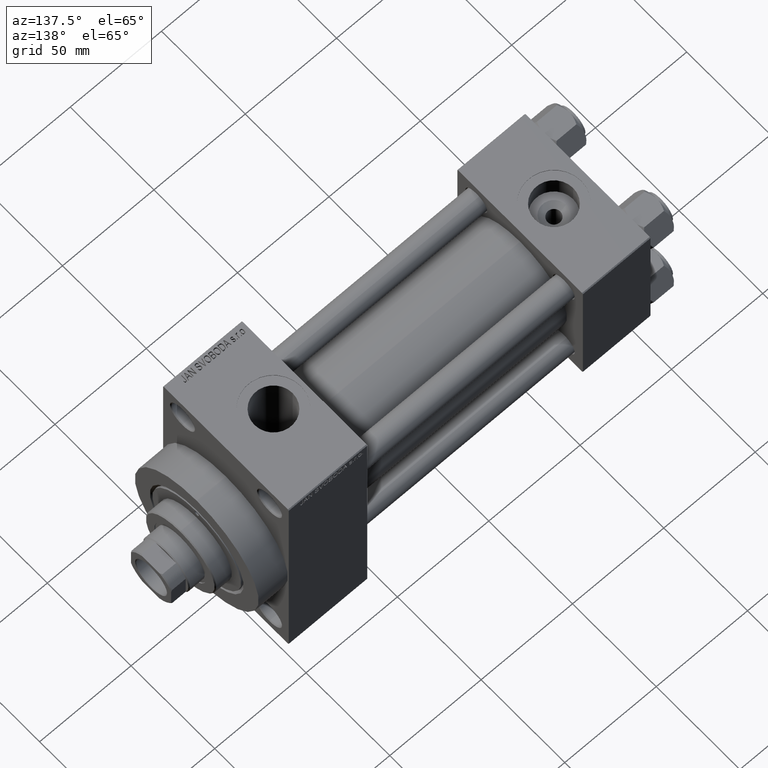
[diagram: clean part render]
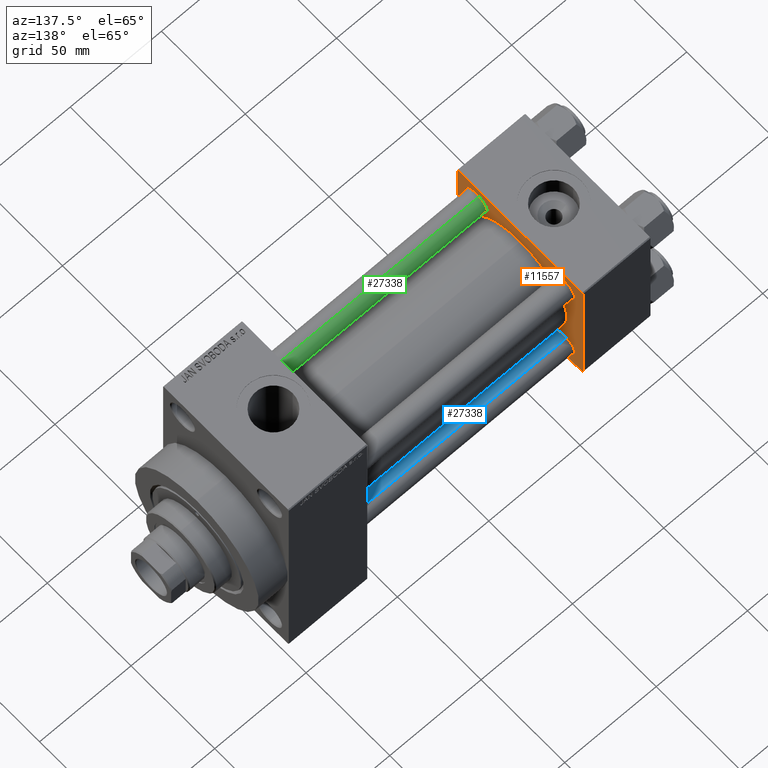
[diagram: same view with three faces highlighted in distinct colors, each labeled with its STEP entity id]
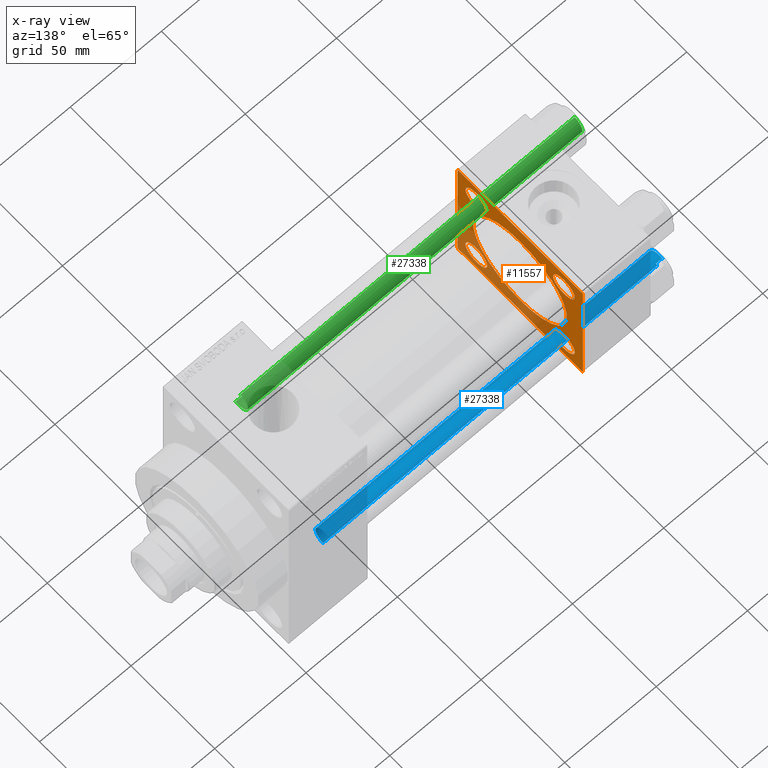
[diagram: x-ray of the same camera — body ghosted, the three highlighted faces saturated]
A machine part, auxiliary view with three faces highlighted in distinct colors.
The next image is the same camera in x-ray (body ghosted, the three faces saturated) — at least one of them is partly hidden behind the body in this view.
Their STEP definitions:

[orange] entity #11557 — the highlighted planar face has unit normal (-1, 0, 0).
#534 = VERTEX_POINT ( 'NONE', #22570 ) ;
#629 = CARTESIAN_POINT ( 'NONE',  ( 37.00000000000000000, 0.000000000000000000, 0.000000000000000000 ) ) ;
#679 = CARTESIAN_POINT ( 'NONE',  ( 37.00000000000000000, 37.49999999999999289, -36.99999999999998579 ) ) ;
#1746 = VERTEX_POINT ( 'NONE', #40072 ) ;
#1997 = CARTESIAN_POINT ( 'NONE',  ( 37.00000000000000000, -37.00000000000002132, -37.50000000000000711 ) ) ;
#2331 = VECTOR ( 'NONE', #6747, 1000.000000000000000 ) ;
#3017 = EDGE_CURVE ( 'NONE', #7062, #38577, #4089, .T. ) ;
#3171 = CIRCLE ( 'NONE', #22339, 6.500000000000008882 ) ;
#3374 = VERTEX_POINT ( 'NONE', #679 ) ;
#3701 = CARTESIAN_POINT ( 'NONE',  ( 37.00000000000000000, 36.99999999999999289, 37.50000000000000000 ) ) ;
#3756 = CARTESIAN_POINT ( 'NONE',  ( 37.00000000000000000, -26.14999999999999147, 26.15000000000000924 ) ) ;
#3987 = DIRECTION ( 'NONE',  ( -1.000000000000000000, 0.000000000000000000, -0.000000000000000000 ) ) ;
#4089 = LINE ( 'NONE', #22085, #2331 ) ;
#4221 = FACE_BOUND ( 'NONE', #11306, .T. ) ;
#4573 = CARTESIAN_POINT ( 'NONE',  ( 37.00000000000000711, 8.269258236473784371E-16, -28.00000000000000000 ) ) ;
#4767 = DIRECTION ( 'NONE',  ( -0.000000000000000000, 0.7071067811865474617, 0.7071067811865474617 ) ) ;
#4793 = AXIS2_PLACEMENT_3D ( 'NONE', #44710, #12098, #33691 ) ;
#4879 = CARTESIAN_POINT ( 'NONE',  ( 37.00000000000000000, 26.14999999999999858, 32.65000000000001279 ) ) ;
#5236 = EDGE_CURVE ( 'NONE', #8766, #1746, #21530, .T. ) ;
#6134 = VECTOR ( 'NONE', #38768, 1000.000000000000000 ) ;
#6212 = EDGE_CURVE ( 'NONE', #18485, #19445, #29604, .T. ) ;
#6566 = ORIENTED_EDGE ( 'NONE', *, *, #20150, .T. ) ;
#6745 = VERTEX_POINT ( 'NONE', #14561 ) ;
#6747 = DIRECTION ( 'NONE',  ( 0.000000000000000000, 9.251858538542971581E-17, -1.000000000000000000 ) ) ;
#6813 = ORIENTED_EDGE ( 'NONE', *, *, #35999, .F. ) ;
#7062 = VERTEX_POINT ( 'NONE', #12092 ) ;
#8138 = EDGE_CURVE ( 'NONE', #16079, #29522, #31610, .T. ) ;
#8149 = DIRECTION ( 'NONE',  ( 0.000000000000000000, 0.000000000000000000, 1.000000000000000000 ) ) ;
#8599 = CARTESIAN_POINT ( 'NONE',  ( 37.00000000000000000, 37.49999999999999289, -36.99999999999998579 ) ) ;
#8766 = VERTEX_POINT ( 'NONE', #14349 ) ;
#8905 = LINE ( 'NONE', #23550, #22683 ) ;
#8989 = ORIENTED_EDGE ( 'NONE', *, *, #10966, .T. ) ;
#9118 = ORIENTED_EDGE ( 'NONE', *, *, #37464, .T. ) ;
#9206 = EDGE_LOOP ( 'NONE', ( #42409, #9118 ) ) ;
#9424 = DIRECTION ( 'NONE',  ( 1.000000000000000000, -0.000000000000000000, 0.000000000000000000 ) ) ;
#9483 = LINE ( 'NONE', #42364, #6134 ) ;
#9949 = DIRECTION ( 'NONE',  ( 0.000000000000000000, 0.000000000000000000, 1.000000000000000000 ) ) ;
#9984 = CARTESIAN_POINT ( 'NONE',  ( 37.00000000000000000, 26.14999999999999858, -32.65000000000000568 ) ) ;
#10232 = LINE ( 'NONE', #43338, #10497 ) ;
#10497 = VECTOR ( 'NONE', #14069, 1000.000000000000000 ) ;
#10720 = VERTEX_POINT ( 'NONE', #46273 ) ;
#10802 = DIRECTION ( 'NONE',  ( -1.000000000000000000, 0.000000000000000000, -0.000000000000000000 ) ) ;
#10966 = EDGE_CURVE ( 'NONE', #29522, #16079, #24641, .T. ) ;
#11306 = EDGE_LOOP ( 'NONE', ( #14833, #6566 ) ) ;
#11464 = ORIENTED_EDGE ( 'NONE', *, *, #8138, .T. ) ;
#11556 = EDGE_CURVE ( 'NONE', #534, #17201, #3171, .T. ) ;
#11557 = ADVANCED_FACE ( 'NONE', ( #33495, #18605, #4221, #40694, #29890, #18370 ), #29427, .F. ) ;
#11724 = DIRECTION ( 'NONE',  ( -1.000000000000000000, 0.000000000000000000, -0.000000000000000000 ) ) ;
#11789 = CARTESIAN_POINT ( 'NONE',  ( 37.00000000000000000, -26.14999999999999147, 32.65000000000001990 ) ) ;
#12092 = CARTESIAN_POINT ( 'NONE',  ( 37.00000000000000000, -37.50000000000000711, 36.99999999999999289 ) ) ;
#12098 = DIRECTION ( 'NONE',  ( -1.000000000000000000, 0.000000000000000000, -0.000000000000000000 ) ) ;
#12377 = VERTEX_POINT ( 'NONE', #19681 ) ;
#12425 = DIRECTION ( 'NONE',  ( 0.000000000000000000, 0.000000000000000000, 1.000000000000000000 ) ) ;
#12485 = CARTESIAN_POINT ( 'NONE',  ( 37.00000000000000000, -37.00000000000000711, 37.49999999999999289 ) ) ;
#12658 = CARTESIAN_POINT ( 'NONE',  ( 37.00000000000000000, 26.14999999999999858, -26.15000000000000213 ) ) ;
#12721 = CIRCLE ( 'NONE', #18822, 28.00000000000000000 ) ;
#12869 = CARTESIAN_POINT ( 'NONE',  ( 37.00000000000000000, 37.49999999999999289, -37.50000000000000000 ) ) ;
#13169 = CARTESIAN_POINT ( 'NONE',  ( 37.00000000000000000, -37.50000000000000000, -37.00000000000003553 ) ) ;
#13307 = DIRECTION ( 'NONE',  ( 0.000000000000000000, 0.000000000000000000, 1.000000000000000000 ) ) ;
#14069 = DIRECTION ( 'NONE',  ( 0.000000000000000000, 0.000000000000000000, -1.000000000000000000 ) ) ;
#14113 = DIRECTION ( 'NONE',  ( 0.000000000000000000, 0.000000000000000000, 1.000000000000000000 ) ) ;
#14349 = CARTESIAN_POINT ( 'NONE',  ( 37.00000000000000000, -26.14999999999999147, -19.65000000000000924 ) ) ;
#14373 = ORIENTED_EDGE ( 'NONE', *, *, #46804, .T. ) ;
#14561 = CARTESIAN_POINT ( 'NONE',  ( 37.00000000000000000, 36.99999999999997868, -37.50000000000000000 ) ) ;
#14784 = EDGE_LOOP ( 'NONE', ( #8989, #11464 ) ) ;
#14833 = ORIENTED_EDGE ( 'NONE', *, *, #11556, .T. ) ;
#14936 = CIRCLE ( 'NONE', #16469, 28.00000000000000000 ) ;
#14963 = ORIENTED_EDGE ( 'NONE', *, *, #5236, .T. ) ;
#15275 = VECTOR ( 'NONE', #4767, 1000.000000000000114 ) ;
#16079 = VERTEX_POINT ( 'NONE', #46531 ) ;
#16176 = LINE ( 'NONE', #38031, #34172 ) ;
#16444 = DIRECTION ( 'NONE',  ( 0.000000000000000000, -1.000000000000000000, -9.251858538542972814E-17 ) ) ;
#16469 = AXIS2_PLACEMENT_3D ( 'NONE', #42305, #9424, #35571 ) ;
#17201 = VERTEX_POINT ( 'NONE', #11789 ) ;
#17226 = AXIS2_PLACEMENT_3D ( 'NONE', #42361, #42823, #9949 ) ;
#17399 = AXIS2_PLACEMENT_3D ( 'NONE', #27415, #24039, #14113 ) ;
#18138 = DIRECTION ( 'NONE',  ( -1.000000000000000000, 0.000000000000000000, -0.000000000000000000 ) ) ;
#18370 = FACE_OUTER_BOUND ( 'NONE', #25132, .T. ) ;
#18485 = VERTEX_POINT ( 'NONE', #34576 ) ;
#18605 = FACE_BOUND ( 'NONE', #14784, .T. ) ;
#18822 = AXIS2_PLACEMENT_3D ( 'NONE', #46557, #31239, #46089 ) ;
#18865 = AXIS2_PLACEMENT_3D ( 'NONE', #26992, #38514, #13307 ) ;
#19296 = DIRECTION ( 'NONE',  ( -0.000000000000000000, -0.7071067811865474617, -0.7071067811865474617 ) ) ;
#19445 = VERTEX_POINT ( 'NONE', #20653 ) ;
#19681 = CARTESIAN_POINT ( 'NONE',  ( 37.00000000000000711, -2.602085213965210642E-15, 28.00000000000000000 ) ) ;
#20150 = EDGE_CURVE ( 'NONE', #17201, #534, #40232, .T. ) ;
#20363 = EDGE_CURVE ( 'NONE', #12377, #30250, #14936, .T. ) ;
#20653 = CARTESIAN_POINT ( 'NONE',  ( 37.00000000000000000, 36.99999999999999289, 37.50000000000000000 ) ) ;
#20807 = DIRECTION ( 'NONE',  ( 0.000000000000000000, 0.000000000000000000, 1.000000000000000000 ) ) ;
#21258 = ORIENTED_EDGE ( 'NONE', *, *, #20363, .F. ) ;
#21530 = CIRCLE ( 'NONE', #43764, 6.500000000000002665 ) ;
#21547 = AXIS2_PLACEMENT_3D ( 'NONE', #629, #18138, #47398 ) ;
#21667 = ORIENTED_EDGE ( 'NONE', *, *, #6212, .T. ) ;
#22085 = CARTESIAN_POINT ( 'NONE',  ( 37.00000000000000000, -37.50000000000000711, 37.49999999999999289 ) ) ;
#22262 = EDGE_CURVE ( 'NONE', #19445, #27226, #8905, .T. ) ;
#22339 = AXIS2_PLACEMENT_3D ( 'NONE', #3756, #3987, #25820 ) ;
#22570 = CARTESIAN_POINT ( 'NONE',  ( 37.00000000000000000, -26.14999999999999147, 19.65000000000000213 ) ) ;
#22683 = VECTOR ( 'NONE', #33638, 1000.000000000000000 ) ;
#23421 = LINE ( 'NONE', #12869, #29904 ) ;
#23547 = ORIENTED_EDGE ( 'NONE', *, *, #35292, .T. ) ;
#23550 = CARTESIAN_POINT ( 'NONE',  ( 37.00000000000000000, 37.49999999999999289, 37.50000000000000000 ) ) ;
#24039 = DIRECTION ( 'NONE',  ( -1.000000000000000000, 0.000000000000000000, -0.000000000000000000 ) ) ;
#24641 = CIRCLE ( 'NONE', #38421, 6.500000000000002665 ) ;
#25132 = EDGE_LOOP ( 'NONE', ( #6813, #47438, #35530, #21667, #31562, #14373, #45595, #23547 ) ) ;
#25820 = DIRECTION ( 'NONE',  ( 0.000000000000000000, 0.000000000000000000, 1.000000000000000000 ) ) ;
#25833 = CIRCLE ( 'NONE', #17399, 6.500000000000002665 ) ;
#26079 = EDGE_CURVE ( 'NONE', #30250, #12377, #12721, .T. ) ;
#26992 = CARTESIAN_POINT ( 'NONE',  ( 37.00000000000000000, 26.14999999999999858, 26.15000000000000213 ) ) ;
#27101 = EDGE_CURVE ( 'NONE', #10720, #41215, #33436, .T. ) ;
#27226 = VERTEX_POINT ( 'NONE', #12485 ) ;
#27293 = DIRECTION ( 'NONE',  ( -1.000000000000000000, 0.000000000000000000, -0.000000000000000000 ) ) ;
#27415 = CARTESIAN_POINT ( 'NONE',  ( 37.00000000000000000, -26.14999999999999147, -26.15000000000000924 ) ) ;
#27587 = EDGE_CURVE ( 'NONE', #18485, #3374, #10232, .T. ) ;
#27690 = EDGE_LOOP ( 'NONE', ( #21258, #33918 ) ) ;
#29227 = EDGE_CURVE ( 'NONE', #1746, #8766, #25833, .T. ) ;
#29427 = PLANE ( 'NONE',  #21547 ) ;
#29522 = VERTEX_POINT ( 'NONE', #9984 ) ;
#29604 = LINE ( 'NONE', #3701, #42260 ) ;
#29890 = FACE_BOUND ( 'NONE', #27690, .T. ) ;
#29904 = VECTOR ( 'NONE', #16444, 1000.000000000000000 ) ;
#30250 = VERTEX_POINT ( 'NONE', #4573 ) ;
#31239 = DIRECTION ( 'NONE',  ( 1.000000000000000000, -0.000000000000000000, 0.000000000000000000 ) ) ;
#31562 = ORIENTED_EDGE ( 'NONE', *, *, #22262, .T. ) ;
#31610 = CIRCLE ( 'NONE', #4793, 6.500000000000002665 ) ;
#32641 = CARTESIAN_POINT ( 'NONE',  ( 37.00000000000000000, 26.14999999999999858, 26.15000000000000213 ) ) ;
#33436 = CIRCLE ( 'NONE', #18865, 6.500000000000002665 ) ;
#33495 = FACE_BOUND ( 'NONE', #37801, .T. ) ;
#33638 = DIRECTION ( 'NONE',  ( 0.000000000000000000, -1.000000000000000000, -9.251858538542971581E-17 ) ) ;
#33691 = DIRECTION ( 'NONE',  ( 0.000000000000000000, 0.000000000000000000, 1.000000000000000000 ) ) ;
#33918 = ORIENTED_EDGE ( 'NONE', *, *, #26079, .F. ) ;
#34172 = VECTOR ( 'NONE', #19296, 1000.000000000000114 ) ;
#34455 = VERTEX_POINT ( 'NONE', #1997 ) ;
#34576 = CARTESIAN_POINT ( 'NONE',  ( 37.00000000000000000, 37.49999999999999289, 37.00000000000000000 ) ) ;
#34785 = EDGE_CURVE ( 'NONE', #6745, #3374, #37635, .T. ) ;
#35214 = AXIS2_PLACEMENT_3D ( 'NONE', #32641, #10802, #8149 ) ;
#35292 = EDGE_CURVE ( 'NONE', #38577, #34455, #9483, .T. ) ;
#35530 = ORIENTED_EDGE ( 'NONE', *, *, #27587, .F. ) ;
#35571 = DIRECTION ( 'NONE',  ( 0.000000000000000000, 0.000000000000000000, 1.000000000000000000 ) ) ;
#35999 = EDGE_CURVE ( 'NONE', #6745, #34455, #23421, .T. ) ;
#37464 = EDGE_CURVE ( 'NONE', #41215, #10720, #47440, .T. ) ;
#37635 = LINE ( 'NONE', #8599, #15275 ) ;
#37801 = EDGE_LOOP ( 'NONE', ( #40409, #14963 ) ) ;
#38031 = CARTESIAN_POINT ( 'NONE',  ( 37.00000000000000000, -37.50000000000000711, 36.99999999999999289 ) ) ;
#38353 = CARTESIAN_POINT ( 'NONE',  ( 37.00000000000000000, -26.14999999999999147, -26.15000000000000924 ) ) ;
#38421 = AXIS2_PLACEMENT_3D ( 'NONE', #12658, #27293, #12425 ) ;
#38514 = DIRECTION ( 'NONE',  ( -1.000000000000000000, 0.000000000000000000, -0.000000000000000000 ) ) ;
#38577 = VERTEX_POINT ( 'NONE', #13169 ) ;
#38768 = DIRECTION ( 'NONE',  ( 0.000000000000000000, 0.7071067811865524577, -0.7071067811865426878 ) ) ;
#40072 = CARTESIAN_POINT ( 'NONE',  ( 37.00000000000000000, -26.14999999999999147, -32.65000000000001279 ) ) ;
#40232 = CIRCLE ( 'NONE', #17226, 6.500000000000008882 ) ;
#40409 = ORIENTED_EDGE ( 'NONE', *, *, #29227, .T. ) ;
#40694 = FACE_BOUND ( 'NONE', #9206, .T. ) ;
#41215 = VERTEX_POINT ( 'NONE', #4879 ) ;
#42260 = VECTOR ( 'NONE', #43759, 1000.000000000000114 ) ;
#42305 = CARTESIAN_POINT ( 'NONE',  ( 37.00000000000000711, -2.602085213965210642E-15, 0.000000000000000000 ) ) ;
#42361 = CARTESIAN_POINT ( 'NONE',  ( 37.00000000000000000, -26.14999999999999147, 26.15000000000000924 ) ) ;
#42364 = CARTESIAN_POINT ( 'NONE',  ( 37.00000000000000000, -37.00000000000002132, -37.50000000000000711 ) ) ;
#42409 = ORIENTED_EDGE ( 'NONE', *, *, #27101, .T. ) ;
#42823 = DIRECTION ( 'NONE',  ( -1.000000000000000000, 0.000000000000000000, -0.000000000000000000 ) ) ;
#43338 = CARTESIAN_POINT ( 'NONE',  ( 37.00000000000000000, 37.49999999999999289, 37.50000000000000000 ) ) ;
#43759 = DIRECTION ( 'NONE',  ( 0.000000000000000000, -0.7071067811865474617, 0.7071067811865474617 ) ) ;
#43764 = AXIS2_PLACEMENT_3D ( 'NONE', #38353, #11724, #20807 ) ;
#44710 = CARTESIAN_POINT ( 'NONE',  ( 37.00000000000000000, 26.14999999999999858, -26.15000000000000213 ) ) ;
#45595 = ORIENTED_EDGE ( 'NONE', *, *, #3017, .T. ) ;
#46089 = DIRECTION ( 'NONE',  ( 0.000000000000000000, 0.000000000000000000, 1.000000000000000000 ) ) ;
#46273 = CARTESIAN_POINT ( 'NONE',  ( 37.00000000000000000, 26.14999999999999858, 19.64999999999999858 ) ) ;
#46531 = CARTESIAN_POINT ( 'NONE',  ( 37.00000000000000000, 26.14999999999999858, -19.65000000000000213 ) ) ;
#46557 = CARTESIAN_POINT ( 'NONE',  ( 37.00000000000000711, -2.602085213965210642E-15, 0.000000000000000000 ) ) ;
#46804 = EDGE_CURVE ( 'NONE', #27226, #7062, #16176, .T. ) ;
#47398 = DIRECTION ( 'NONE',  ( -0.000000000000000000, 0.000000000000000000, 1.000000000000000000 ) ) ;
#47438 = ORIENTED_EDGE ( 'NONE', *, *, #34785, .T. ) ;
#47440 = CIRCLE ( 'NONE', #35214, 6.500000000000002665 ) ;

[blue] entity #27338 — the highlighted cylindrical surface (edge-blend (fillet) strip) has radius 6 mm, axis along (1, -0, 0).
#646 = LINE ( 'NONE', #10729, #9630 ) ;
#1634 = AXIS2_PLACEMENT_3D ( 'NONE', #16598, #45624, #12780 ) ;
#2382 = DIRECTION ( 'NONE',  ( 0.000000000000000000, 0.000000000000000000, -1.000000000000000000 ) ) ;
#2625 = DIRECTION ( 'NONE',  ( -1.000000000000000000, 0.000000000000000000, 0.000000000000000000 ) ) ;
#2935 = CARTESIAN_POINT ( 'NONE',  ( -6.000000000000000888, 0.000000000000000000, 184.0000000000000000 ) ) ;
#5574 = CIRCLE ( 'NONE', #1634, 6.000000000000000888 ) ;
#5833 = VERTEX_POINT ( 'NONE', #31603 ) ;
#6891 = EDGE_LOOP ( 'NONE', ( #17394, #22971, #41638, #25652 ) ) ;
#9630 = VECTOR ( 'NONE', #40013, 1000.000000000000000 ) ;
#9819 = FACE_OUTER_BOUND ( 'NONE', #6891, .T. ) ;
#10308 = EDGE_CURVE ( 'NONE', #34786, #46393, #5574, .T. ) ;
#10567 = VERTEX_POINT ( 'NONE', #40570 ) ;
#10729 = CARTESIAN_POINT ( 'NONE',  ( 6.000000000000000888, 7.347880794884120722E-16, 184.0000000000000000 ) ) ;
#12780 = DIRECTION ( 'NONE',  ( 1.000000000000000000, 0.000000000000000000, 0.000000000000000000 ) ) ;
#13420 = CARTESIAN_POINT ( 'NONE',  ( 0.000000000000000000, 0.000000000000000000, 184.0000000000000000 ) ) ;
#15096 = LINE ( 'NONE', #2935, #47146 ) ;
#16598 = CARTESIAN_POINT ( 'NONE',  ( 0.000000000000000000, 0.000000000000000000, 0.5000000000000004441 ) ) ;
#17394 = ORIENTED_EDGE ( 'NONE', *, *, #20878, .F. ) ;
#20596 = EDGE_CURVE ( 'NONE', #10567, #34786, #15096, .T. ) ;
#20878 = EDGE_CURVE ( 'NONE', #5833, #46393, #646, .T. ) ;
#21124 = CIRCLE ( 'NONE', #44890, 6.000000000000000888 ) ;
#22509 = CARTESIAN_POINT ( 'NONE',  ( -6.000000000000000888, 0.000000000000000000, 0.5000000000000004441 ) ) ;
#22971 = ORIENTED_EDGE ( 'NONE', *, *, #25578, .T. ) ;
#25578 = EDGE_CURVE ( 'NONE', #5833, #10567, #21124, .T. ) ;
#25652 = ORIENTED_EDGE ( 'NONE', *, *, #10308, .T. ) ;
#27338 = ADVANCED_FACE ( 'NONE', ( #9819 ), #46271, .T. ) ;
#28746 = DIRECTION ( 'NONE',  ( 1.000000000000000000, 0.000000000000000000, 0.000000000000000000 ) ) ;
#29737 = DIRECTION ( 'NONE',  ( -0.000000000000000000, -0.000000000000000000, -1.000000000000000000 ) ) ;
#31462 = CARTESIAN_POINT ( 'NONE',  ( 6.000000000000000888, 7.347880794884120722E-16, 0.5000000000000004441 ) ) ;
#31603 = CARTESIAN_POINT ( 'NONE',  ( 6.000000000000000888, 7.347880794884120722E-16, 183.5000000000000000 ) ) ;
#32722 = AXIS2_PLACEMENT_3D ( 'NONE', #13420, #35493, #2625 ) ;
#34786 = VERTEX_POINT ( 'NONE', #22509 ) ;
#35246 = CARTESIAN_POINT ( 'NONE',  ( 0.000000000000000000, 0.000000000000000000, 183.5000000000000000 ) ) ;
#35493 = DIRECTION ( 'NONE',  ( -0.000000000000000000, -0.000000000000000000, -1.000000000000000000 ) ) ;
#40013 = DIRECTION ( 'NONE',  ( -0.000000000000000000, -0.000000000000000000, -1.000000000000000000 ) ) ;
#40570 = CARTESIAN_POINT ( 'NONE',  ( -6.000000000000000888, 0.000000000000000000, 183.5000000000000000 ) ) ;
#41638 = ORIENTED_EDGE ( 'NONE', *, *, #20596, .T. ) ;
#44890 = AXIS2_PLACEMENT_3D ( 'NONE', #35246, #2382, #28746 ) ;
#45624 = DIRECTION ( 'NONE',  ( -0.000000000000000000, -0.000000000000000000, 1.000000000000000000 ) ) ;
#46271 = CYLINDRICAL_SURFACE ( 'NONE', #32722, 6.000000000000000888 ) ;
#46393 = VERTEX_POINT ( 'NONE', #31462 ) ;
#47146 = VECTOR ( 'NONE', #29737, 1000.000000000000000 ) ;

[green] entity #27338 — the highlighted cylindrical surface (edge-blend (fillet) strip) has radius 6 mm, axis along (1, 0, 0).
#646 = LINE ( 'NONE', #10729, #9630 ) ;
#1634 = AXIS2_PLACEMENT_3D ( 'NONE', #16598, #45624, #12780 ) ;
#2382 = DIRECTION ( 'NONE',  ( 0.000000000000000000, 0.000000000000000000, -1.000000000000000000 ) ) ;
#2625 = DIRECTION ( 'NONE',  ( -1.000000000000000000, 0.000000000000000000, 0.000000000000000000 ) ) ;
#2935 = CARTESIAN_POINT ( 'NONE',  ( -6.000000000000000888, 0.000000000000000000, 184.0000000000000000 ) ) ;
#5574 = CIRCLE ( 'NONE', #1634, 6.000000000000000888 ) ;
#5833 = VERTEX_POINT ( 'NONE', #31603 ) ;
#6891 = EDGE_LOOP ( 'NONE', ( #17394, #22971, #41638, #25652 ) ) ;
#9630 = VECTOR ( 'NONE', #40013, 1000.000000000000000 ) ;
#9819 = FACE_OUTER_BOUND ( 'NONE', #6891, .T. ) ;
#10308 = EDGE_CURVE ( 'NONE', #34786, #46393, #5574, .T. ) ;
#10567 = VERTEX_POINT ( 'NONE', #40570 ) ;
#10729 = CARTESIAN_POINT ( 'NONE',  ( 6.000000000000000888, 7.347880794884120722E-16, 184.0000000000000000 ) ) ;
#12780 = DIRECTION ( 'NONE',  ( 1.000000000000000000, 0.000000000000000000, 0.000000000000000000 ) ) ;
#13420 = CARTESIAN_POINT ( 'NONE',  ( 0.000000000000000000, 0.000000000000000000, 184.0000000000000000 ) ) ;
#15096 = LINE ( 'NONE', #2935, #47146 ) ;
#16598 = CARTESIAN_POINT ( 'NONE',  ( 0.000000000000000000, 0.000000000000000000, 0.5000000000000004441 ) ) ;
#17394 = ORIENTED_EDGE ( 'NONE', *, *, #20878, .F. ) ;
#20596 = EDGE_CURVE ( 'NONE', #10567, #34786, #15096, .T. ) ;
#20878 = EDGE_CURVE ( 'NONE', #5833, #46393, #646, .T. ) ;
#21124 = CIRCLE ( 'NONE', #44890, 6.000000000000000888 ) ;
#22509 = CARTESIAN_POINT ( 'NONE',  ( -6.000000000000000888, 0.000000000000000000, 0.5000000000000004441 ) ) ;
#22971 = ORIENTED_EDGE ( 'NONE', *, *, #25578, .T. ) ;
#25578 = EDGE_CURVE ( 'NONE', #5833, #10567, #21124, .T. ) ;
#25652 = ORIENTED_EDGE ( 'NONE', *, *, #10308, .T. ) ;
#27338 = ADVANCED_FACE ( 'NONE', ( #9819 ), #46271, .T. ) ;
#28746 = DIRECTION ( 'NONE',  ( 1.000000000000000000, 0.000000000000000000, 0.000000000000000000 ) ) ;
#29737 = DIRECTION ( 'NONE',  ( -0.000000000000000000, -0.000000000000000000, -1.000000000000000000 ) ) ;
#31462 = CARTESIAN_POINT ( 'NONE',  ( 6.000000000000000888, 7.347880794884120722E-16, 0.5000000000000004441 ) ) ;
#31603 = CARTESIAN_POINT ( 'NONE',  ( 6.000000000000000888, 7.347880794884120722E-16, 183.5000000000000000 ) ) ;
#32722 = AXIS2_PLACEMENT_3D ( 'NONE', #13420, #35493, #2625 ) ;
#34786 = VERTEX_POINT ( 'NONE', #22509 ) ;
#35246 = CARTESIAN_POINT ( 'NONE',  ( 0.000000000000000000, 0.000000000000000000, 183.5000000000000000 ) ) ;
#35493 = DIRECTION ( 'NONE',  ( -0.000000000000000000, -0.000000000000000000, -1.000000000000000000 ) ) ;
#40013 = DIRECTION ( 'NONE',  ( -0.000000000000000000, -0.000000000000000000, -1.000000000000000000 ) ) ;
#40570 = CARTESIAN_POINT ( 'NONE',  ( -6.000000000000000888, 0.000000000000000000, 183.5000000000000000 ) ) ;
#41638 = ORIENTED_EDGE ( 'NONE', *, *, #20596, .T. ) ;
#44890 = AXIS2_PLACEMENT_3D ( 'NONE', #35246, #2382, #28746 ) ;
#45624 = DIRECTION ( 'NONE',  ( -0.000000000000000000, -0.000000000000000000, 1.000000000000000000 ) ) ;
#46271 = CYLINDRICAL_SURFACE ( 'NONE', #32722, 6.000000000000000888 ) ;
#46393 = VERTEX_POINT ( 'NONE', #31462 ) ;
#47146 = VECTOR ( 'NONE', #29737, 1000.000000000000000 ) ;